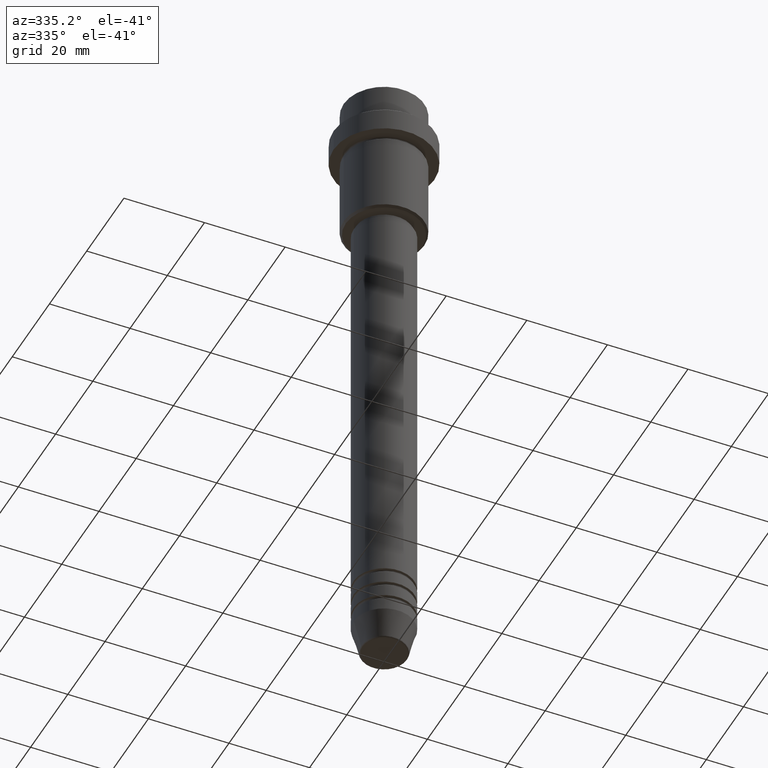
[diagram: clean part render]
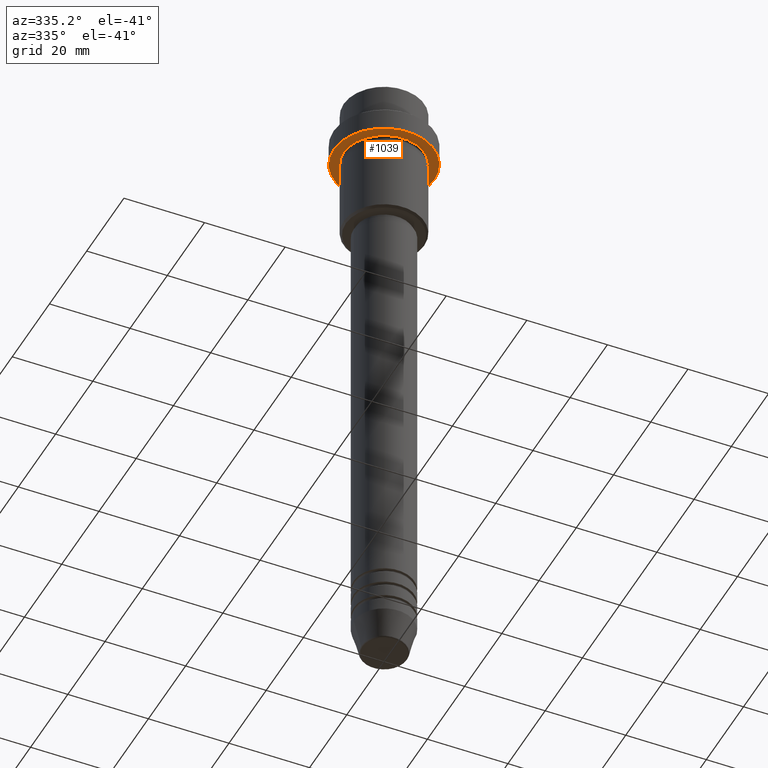
[diagram: same view with one face highlighted and labeled with its STEP entity id]
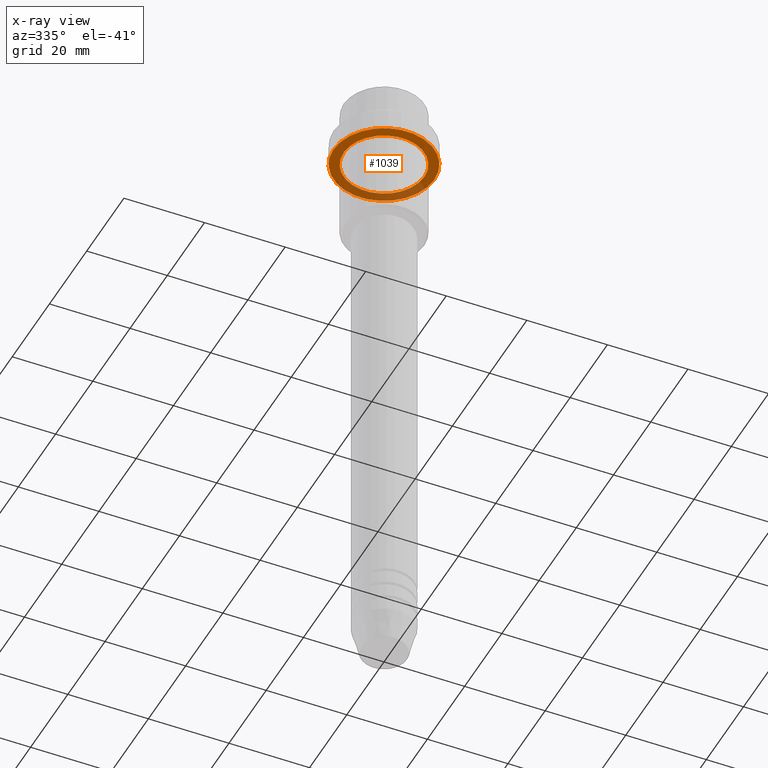
[diagram: x-ray of the same camera — body ghosted, the highlighted face saturated]
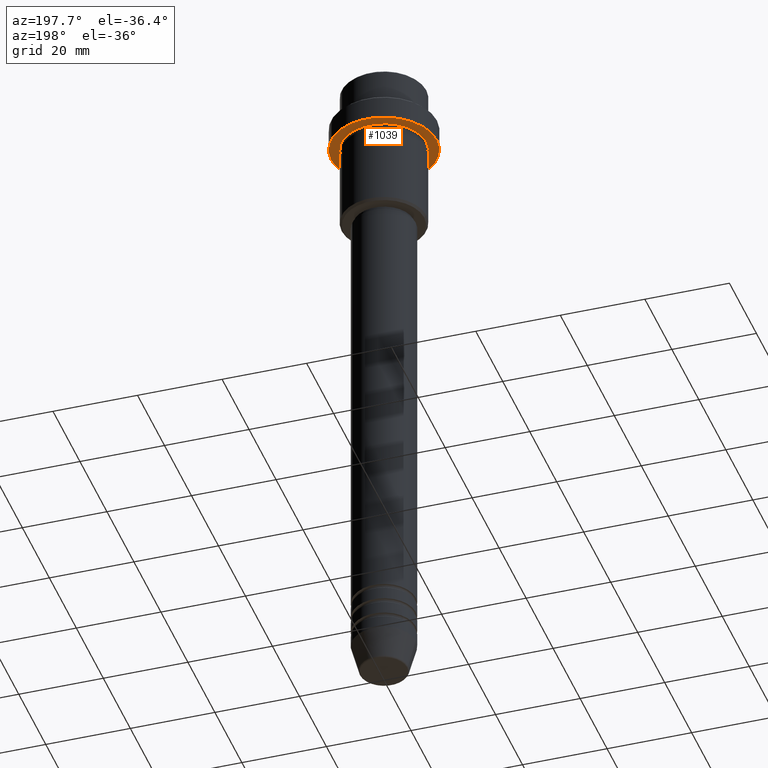
[diagram: same view with one face highlighted and labeled with its STEP entity id]
A machine part, auxiliary view. The second image highlights one B-rep face of the part: STEP entity #1039.
The next image is the same camera in x-ray: the body ghosted, the highlighted face saturated — about 28% of this face is hidden behind the body in this view.
A second angle (auxiliary view) of the same face is appended — the face is thin or edge-on in the first view.
In plain terms, the highlighted planar face has unit normal (0, 0, -1).
Its self-contained STEP definition (entity closure, byte-faithful):
#27 = CARTESIAN_POINT ( 'NONE',  ( 12.50000000000000000, 0.000000000000000000, -15.00000000000000000 ) ) ;
#53 = VERTEX_POINT ( 'NONE', #1285 ) ;
#86 = EDGE_LOOP ( 'NONE', ( #554, #1131 ) ) ;
#102 = DIRECTION ( 'NONE',  ( -1.000000000000000000, 0.000000000000000000, 0.000000000000000000 ) ) ;
#119 = DIRECTION ( 'NONE',  ( -0.000000000000000000, -0.000000000000000000, 1.000000000000000000 ) ) ;
#166 = CARTESIAN_POINT ( 'NONE',  ( 0.000000000000000000, 12.50000000000000000, -15.00000000000000000 ) ) ;
#221 = CARTESIAN_POINT ( 'NONE',  ( 0.000000000000000000, 0.000000000000000000, -15.00000000000000000 ) ) ;
#255 = AXIS2_PLACEMENT_3D ( 'NONE', #166, #1146, #478 ) ;
#263 = FACE_OUTER_BOUND ( 'NONE', #881, .T. ) ;
#366 = AXIS2_PLACEMENT_3D ( 'NONE', #965, #417, #618 ) ;
#417 = DIRECTION ( 'NONE',  ( -0.000000000000000000, -0.000000000000000000, 1.000000000000000000 ) ) ;
#436 = DIRECTION ( 'NONE',  ( -1.000000000000000000, 0.000000000000000000, 0.000000000000000000 ) ) ;
#478 = DIRECTION ( 'NONE',  ( -1.000000000000000000, 0.000000000000000000, -0.000000000000000000 ) ) ;
#485 = ORIENTED_EDGE ( 'NONE', *, *, #1232, .F. ) ;
#502 = CIRCLE ( 'NONE', #1267, 12.50000000000000000 ) ;
#554 = ORIENTED_EDGE ( 'NONE', *, *, #988, .T. ) ;
#618 = DIRECTION ( 'NONE',  ( 1.000000000000000000, 0.000000000000000000, 0.000000000000000000 ) ) ;
#634 = AXIS2_PLACEMENT_3D ( 'NONE', #1187, #119, #102 ) ;
#651 = ORIENTED_EDGE ( 'NONE', *, *, #1228, .F. ) ;
#708 = FACE_BOUND ( 'NONE', #86, .T. ) ;
#729 = AXIS2_PLACEMENT_3D ( 'NONE', #221, #1415, #436 ) ;
#759 = CARTESIAN_POINT ( 'NONE',  ( -9.999999999999992895, 0.000000000000000000, -15.00000000000000000 ) ) ;
#788 = VERTEX_POINT ( 'NONE', #961 ) ;
#819 = PLANE ( 'NONE',  #255 ) ;
#826 = DIRECTION ( 'NONE',  ( -0.000000000000000000, -0.000000000000000000, 1.000000000000000000 ) ) ;
#847 = CIRCLE ( 'NONE', #634, 9.999999999999992895 ) ;
#881 = EDGE_LOOP ( 'NONE', ( #485, #651 ) ) ;
#961 = CARTESIAN_POINT ( 'NONE',  ( -12.50000000000000000, 1.530808498934191521E-15, -15.00000000000000000 ) ) ;
#965 = CARTESIAN_POINT ( 'NONE',  ( 0.000000000000000000, 0.000000000000000000, -15.00000000000000000 ) ) ;
#988 = EDGE_CURVE ( 'NONE', #1321, #53, #1384, .T. ) ;
#1039 = ADVANCED_FACE ( 'NONE', ( #708, #263 ), #819, .T. ) ;
#1103 = VERTEX_POINT ( 'NONE', #27 ) ;
#1120 = CIRCLE ( 'NONE', #366, 12.50000000000000000 ) ;
#1131 = ORIENTED_EDGE ( 'NONE', *, *, #1349, .T. ) ;
#1146 = DIRECTION ( 'NONE',  ( 0.000000000000000000, 0.000000000000000000, -1.000000000000000000 ) ) ;
#1187 = CARTESIAN_POINT ( 'NONE',  ( 0.000000000000000000, 0.000000000000000000, -15.00000000000000000 ) ) ;
#1228 = EDGE_CURVE ( 'NONE', #788, #1103, #1120, .T. ) ;
#1232 = EDGE_CURVE ( 'NONE', #1103, #788, #502, .T. ) ;
#1267 = AXIS2_PLACEMENT_3D ( 'NONE', #1397, #826, #1364 ) ;
#1285 = CARTESIAN_POINT ( 'NONE',  ( 9.999999999999992895, 1.224646799147352468E-15, -15.00000000000000000 ) ) ;
#1321 = VERTEX_POINT ( 'NONE', #759 ) ;
#1349 = EDGE_CURVE ( 'NONE', #53, #1321, #847, .T. ) ;
#1364 = DIRECTION ( 'NONE',  ( 1.000000000000000000, 0.000000000000000000, 0.000000000000000000 ) ) ;
#1384 = CIRCLE ( 'NONE', #729, 9.999999999999992895 ) ;
#1397 = CARTESIAN_POINT ( 'NONE',  ( 0.000000000000000000, 0.000000000000000000, -15.00000000000000000 ) ) ;
#1415 = DIRECTION ( 'NONE',  ( -0.000000000000000000, -0.000000000000000000, 1.000000000000000000 ) ) ;